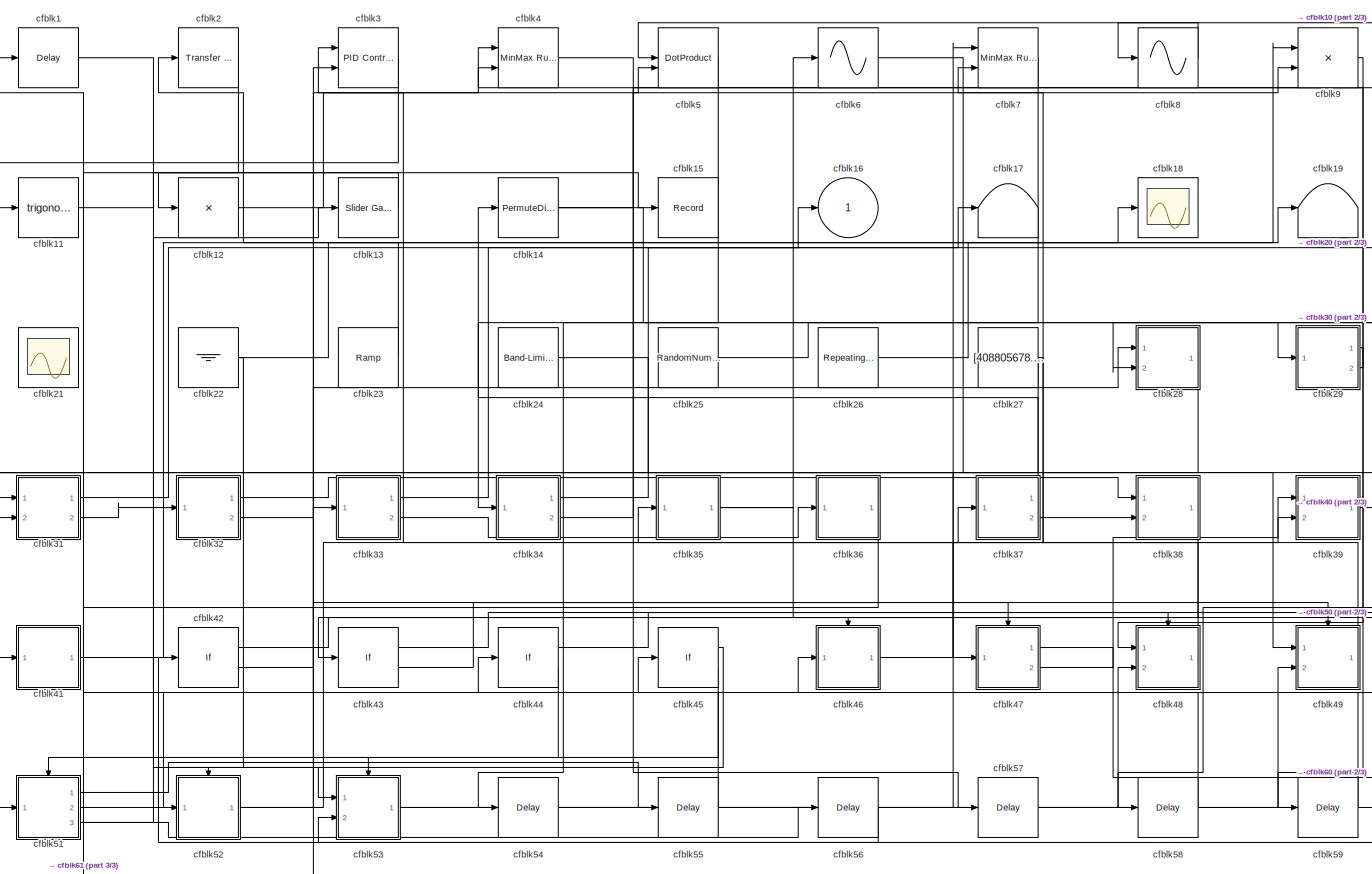
[diagram: root canvas - part 1/3, most of the canvas]
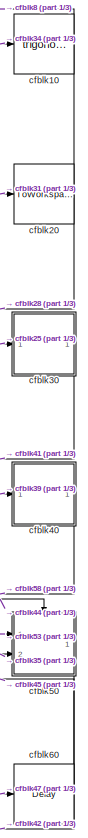
[diagram: root canvas - part 2/3, right side, full height]
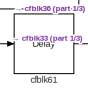
[diagram: root canvas - part 3/3, bottom left region]
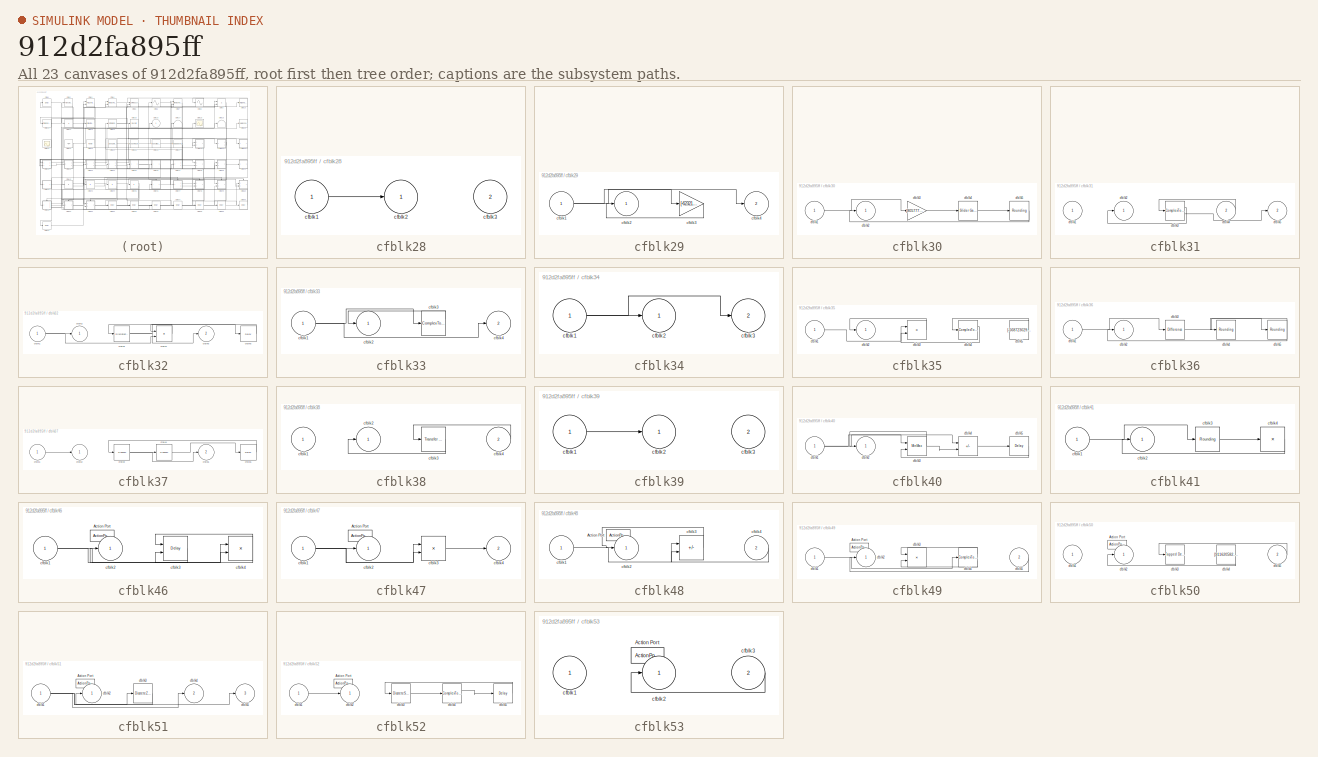
[diagram: thumbnail index - all 23 canvases of the model, root first then tree order]
MODEL slx_912d2fa895ff
KIND model
CONFIG AbsTol = auto
CONFIG EnableMultiTasking = off
CONFIG FixedStep = auto
CONFIG MaxStep = auto
CONFIG MinStep = auto
CONFIG RelTol = 1e-3
CONFIG SampleTimeConstraint = Unconstrained
CONFIG SolverName = VariableStepAuto
CONFIG StartTime = 0.0
CONFIG StopTime = 10.0
BLOCK [Delay] cfblk1
  InputPortMap = u0
  Ports = [1, 1]
  SampleTime = 1
BLOCK [Trigonometry] cfblk10
  Ports = [1, 1]
BLOCK [Trigonometry] cfblk11
  Ports = [1, 1]
BLOCK [Product] cfblk12
  Inputs = *
  Ports = [1, 1]
BLOCK [Reference] cfblk13  REF=simulink/Math
Operations/Slider
Gain
  Ports = [1, 1]
  SourceBlock = simulink/Math\nOperations/Slider\nGain
  SourceProductBaseCode = SL
  SourceType = Slider Gain
BLOCK [PermuteDimensions] cfblk14
BLOCK [Record] cfblk15
  FileSettingsInternal = {"entries":[{"content":{"excelSettings":{"content":{},"type":"Streamout.ExcelSettings"}},"type":"Streamout.FileSettingStorage","uuid":"ca993f84-a60c-403e-8350-93dc5c48e853"}],"packageUris":["http://schema.mathworks.com/mf0/streamout_blocks/R2020a"],"version":"1.0"}
  Ports = [1]
  SignalsInternal = {"entries":[{"content":{"signals":[{"content":{"blockPath":["sampleModel188/cfblk15"],"channel":[],"dimensions":[1,1],"domain":"sampleModel188/cfblk15","lineColor":"#139fff","plots":[1],"port":1,"sid":[""],"signalID":7064,"signalName":"cfblk11"},"type":"RecordBlkView.Signal","uuid":"ba3ac5e5-cf71-48a5-8aa6-1fcd734a01e5"}]},"type":"RecordBlkView.InputSignals","uuid":"2d8e7e94-0d17-40cb-8f9e-080a064...<+99ch>
  VisualizationBindings = {"sparklinesplugin":{"info":[{"bindingParametersList":[],"subplotID":1}]}}
BLOCK [Outport] cfblk16
BLOCK [Terminator] cfblk17
BLOCK [Scope] cfblk18
  Floating = off
  NumInputPorts = 1
  Ports = [1]
BLOCK [Terminator] cfblk19
BLOCK [Reference] cfblk2  REF=simulink/Discrete/Transfer Fcn
First Order
  Ports = [1, 1]
  SourceBlock = simulink/Discrete/Transfer Fcn\nFirst Order
  SourceProductBaseCode = SL
  SourceType = First Order Transfer Fcn
BLOCK [ToWorkspace] cfblk20
  FixptAsFi = on
  MaxDataPoints = inf
  Ports = [1]
  SampleTime = -1
  SaveFormat = Timeseries
  VariableName = ojbnuaf
BLOCK [Scope] cfblk21
  Floating = on
  NumInputPorts = 1
  Ports = []
BLOCK [Ground] cfblk22
BLOCK [Reference] cfblk23  REF=simulink/Sources/Ramp
  Ports = [0, 1]
  SourceBlock = simulink/Sources/Ramp
  SourceProductBaseCode = SL
  SourceType = Ramp
BLOCK [Reference] cfblk24  REF=simulink/Sources/Band-Limited
White Noise
  Ports = [0, 1]
  SourceBlock = simulink/Sources/Band-Limited\nWhite Noise
  SourceProductBaseCode = SL
  SourceType = Band-Limited White Noise.
BLOCK [RandomNumber] cfblk25
  Mean = [-27753.868403]
  SampleTime = 0.1
  Seed = [28560651.000000]
  Variance = [17619.578113]
BLOCK [Reference] cfblk26  REF=simulink/Sources/Repeating
Sequence
Stair
  Ports = [0, 1]
  SourceBlock = simulink/Sources/Repeating\nSequence\nStair
  SourceProductBaseCode = SL
  SourceType = Repeating Sequence Stair
BLOCK [Constant] cfblk27
  SampleTime = 1
  Value = [408805678.062761]
BLOCK [SubSystem] cfblk28
  Ports = [2, 1]
  RequestExecContextInheritance = off
BLOCK [Inport] cfblk28/cfblk1
BLOCK [Outport] cfblk28/cfblk2
BLOCK [Inport] cfblk28/cfblk3
  Port = 2
BLOCK [SubSystem] cfblk29
  Ports = [1, 2]
  RequestExecContextInheritance = off
BLOCK [Inport] cfblk29/cfblk1
BLOCK [Outport] cfblk29/cfblk2
BLOCK [Gain] cfblk29/cfblk3
  Gain = [-623215974.272057]
BLOCK [Outport] cfblk29/cfblk4
  Port = 2
BLOCK [Reference] cfblk3  REF=slpidlib/PID Controller (2DOF)
  Ports = [2, 1]
  SourceBlock = slpidlib/PID Controller (2DOF)
  SourceProductBaseCode = SL
  SourceType = PID 2dof
BLOCK [SubSystem] cfblk30
  Ports = [1, 1]
  RequestExecContextInheritance = off
BLOCK [Inport] cfblk30/cfblk1
BLOCK [Outport] cfblk30/cfblk2
BLOCK [Gain] cfblk30/cfblk3
  Gain = [805777025.743840]
BLOCK [Reference] cfblk30/cfblk4  REF=simulink/Math
Operations/Slider
Gain
  Ports = [1, 1]
  SourceBlock = simulink/Math\nOperations/Slider\nGain
  SourceProductBaseCode = SL
  SourceType = Slider Gain
BLOCK [Rounding] cfblk30/cfblk5
BLOCK [SubSystem] cfblk31
  Ports = [2, 2]
  RequestExecContextInheritance = off
BLOCK [Inport] cfblk31/cfblk1
BLOCK [Outport] cfblk31/cfblk2
BLOCK [ComplexToRealImag] cfblk31/cfblk3
  Ports = [1, 2]
BLOCK [Inport] cfblk31/cfblk4
  Port = 2
BLOCK [Outport] cfblk31/cfblk5
  Port = 2
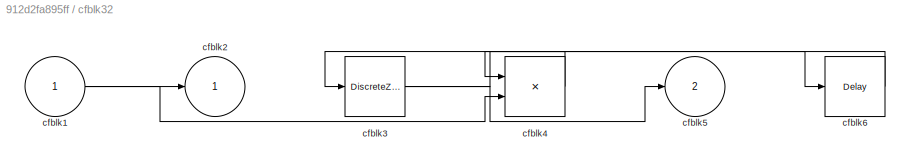
BLOCK [SubSystem] cfblk32
  Ports = [1, 2]
  RequestExecContextInheritance = off
BLOCK [Inport] cfblk32/cfblk1
BLOCK [Outport] cfblk32/cfblk2
BLOCK [DiscreteZeroPole] cfblk32/cfblk3
  Gain = 1
  Poles = [0 0.5]
BLOCK [Product] cfblk32/cfblk4
  Inputs = **
  Ports = [2, 1]
BLOCK [Outport] cfblk32/cfblk5
  Port = 2
BLOCK [Delay] cfblk32/cfblk6
  InputPortMap = u0
  Ports = [1, 1]
  SampleTime = 1
BLOCK [SubSystem] cfblk33
  Ports = [1, 2]
  RequestExecContextInheritance = off
BLOCK [Inport] cfblk33/cfblk1
BLOCK [Outport] cfblk33/cfblk2
BLOCK [ComplexToMagnitudeAngle] cfblk33/cfblk3
  Ports = [1, 2]
BLOCK [Outport] cfblk33/cfblk4
  Port = 2
BLOCK [SubSystem] cfblk34
  Ports = [1, 2]
  RequestExecContextInheritance = off
BLOCK [Inport] cfblk34/cfblk1
BLOCK [Outport] cfblk34/cfblk2
BLOCK [Outport] cfblk34/cfblk3
  Port = 2
BLOCK [SubSystem] cfblk35
  Ports = [1, 1]
  RequestExecContextInheritance = off
BLOCK [Inport] cfblk35/cfblk1
BLOCK [Outport] cfblk35/cfblk2
BLOCK [Product] cfblk35/cfblk3
  Inputs = **
  Ports = [2, 1]
BLOCK [ComplexToRealImag] cfblk35/cfblk4
  Ports = [1, 2]
BLOCK [Constant] cfblk35/cfblk5
  SampleTime = 1
  Value = [-568723029.088032]
BLOCK [SubSystem] cfblk36
  Ports = [1, 1]
  RequestExecContextInheritance = off
BLOCK [Inport] cfblk36/cfblk1
BLOCK [Outport] cfblk36/cfblk2
BLOCK [Reference] cfblk36/cfblk3  REF=simulink/Discrete/Difference
  Ports = [1, 1]
  SourceBlock = simulink/Discrete/Difference
  SourceProductBaseCode = SL
  SourceType = Difference
BLOCK [Rounding] cfblk36/cfblk4
BLOCK [Rounding] cfblk36/cfblk5
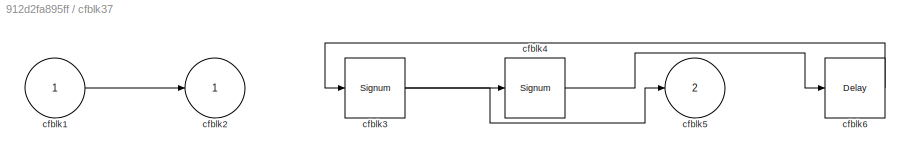
BLOCK [SubSystem] cfblk37
  Ports = [1, 2]
  RequestExecContextInheritance = off
BLOCK [Inport] cfblk37/cfblk1
BLOCK [Outport] cfblk37/cfblk2
BLOCK [Signum] cfblk37/cfblk3
BLOCK [Signum] cfblk37/cfblk4
BLOCK [Outport] cfblk37/cfblk5
  Port = 2
BLOCK [Delay] cfblk37/cfblk6
  InputPortMap = u0
  Ports = [1, 1]
  SampleTime = 1
BLOCK [SubSystem] cfblk38
  Ports = [2, 1]
  RequestExecContextInheritance = off
BLOCK [Inport] cfblk38/cfblk1
BLOCK [Outport] cfblk38/cfblk2
BLOCK [Reference] cfblk38/cfblk3  REF=simulink/Discrete/Transfer Fcn
Lead or Lag
  Ports = [1, 1]
  SourceBlock = simulink/Discrete/Transfer Fcn\nLead or Lag
  SourceProductBaseCode = SL
  SourceType = Lead or Lag Compensator
BLOCK [Inport] cfblk38/cfblk4
  Port = 2
BLOCK [SubSystem] cfblk39
  Ports = [2, 1]
  RequestExecContextInheritance = off
BLOCK [Inport] cfblk39/cfblk1
BLOCK [Outport] cfblk39/cfblk2
BLOCK [Inport] cfblk39/cfblk3
  Port = 2
BLOCK [Reference] cfblk4  REF=simulink/Math
Operations/MinMax
Running
Resettable
  Ports = [2, 1]
  SourceBlock = simulink/Math\nOperations/MinMax\nRunning\nResettable
  SourceProductBaseCode = SL
  SourceType = MinMax Running Resettable
BLOCK [SubSystem] cfblk40
  Ports = [1, 1]
  RequestExecContextInheritance = off
BLOCK [Inport] cfblk40/cfblk1
BLOCK [Outport] cfblk40/cfblk2
BLOCK [MinMax] cfblk40/cfblk3
  Function = max
  Inputs = 2
  Ports = [2, 1]
BLOCK [Sum] cfblk40/cfblk4
  IconShape = rectangular
  Inputs = --
  Ports = [2, 1]
BLOCK [Delay] cfblk40/cfblk5
  InputPortMap = u0
  Ports = [1, 1]
  SampleTime = 1
BLOCK [SubSystem] cfblk41
  Ports = [1, 1]
  RequestExecContextInheritance = off
BLOCK [Inport] cfblk41/cfblk1
BLOCK [Outport] cfblk41/cfblk2
BLOCK [Rounding] cfblk41/cfblk3
BLOCK [Product] cfblk41/cfblk4
  Inputs = *
  Ports = [1, 1]
BLOCK [If] cfblk42
  IfExpression = u1 >= 0
  Ports = [1, 2]
  SampleTime = 1
BLOCK [If] cfblk43
  IfExpression = u1 >= 0
  Ports = [1, 2]
  SampleTime = 1
BLOCK [If] cfblk44
  IfExpression = u1 >= 0
  Ports = [1, 2]
  SampleTime = 1
BLOCK [If] cfblk45
  IfExpression = u1 >= 0
  Ports = [1, 2]
  SampleTime = 1
BLOCK [SubSystem] cfblk46
  Ports = [1, 1, 0, 0, 0, 0, 0, 1]
  RequestExecContextInheritance = off
  TreatAsAtomicUnit = on
BLOCK [ActionPort] cfblk46/Action Port
  ActionPortLabel = if(u1 >= 0)
BLOCK [Inport] cfblk46/cfblk1
BLOCK [Outport] cfblk46/cfblk2
BLOCK [Delay] cfblk46/cfblk3
  DelayLengthSource = Input port
  InputPortMap = u0,p1
  Ports = [2, 1]
BLOCK [Product] cfblk46/cfblk4
  Inputs = **
  Ports = [2, 1]
BLOCK [SubSystem] cfblk47
  Ports = [1, 2, 0, 0, 0, 0, 0, 1]
  RequestExecContextInheritance = off
  TreatAsAtomicUnit = on
BLOCK [ActionPort] cfblk47/Action Port
  ActionPortLabel = else
BLOCK [Inport] cfblk47/cfblk1
BLOCK [Outport] cfblk47/cfblk2
BLOCK [Product] cfblk47/cfblk3
  Ports = [2, 1]
BLOCK [Outport] cfblk47/cfblk4
  Port = 2
BLOCK [SubSystem] cfblk48
  Ports = [2, 1, 0, 0, 0, 0, 0, 1]
  RequestExecContextInheritance = off
  TreatAsAtomicUnit = on
BLOCK [ActionPort] cfblk48/Action Port
  ActionPortLabel = if(u1 >= 0)
BLOCK [Inport] cfblk48/cfblk1
BLOCK [Outport] cfblk48/cfblk2
BLOCK [Sum] cfblk48/cfblk3
  IconShape = rectangular
  Inputs = --
  Ports = [2, 1]
BLOCK [Inport] cfblk48/cfblk4
  Port = 2
BLOCK [SubSystem] cfblk49
  Ports = [2, 1, 0, 0, 0, 0, 0, 1]
  RequestExecContextInheritance = off
  TreatAsAtomicUnit = on
BLOCK [ActionPort] cfblk49/Action Port
  ActionPortLabel = else
BLOCK [Inport] cfblk49/cfblk1
BLOCK [Outport] cfblk49/cfblk2
BLOCK [Product] cfblk49/cfblk3
  Inputs = **
  Ports = [2, 1]
BLOCK [ComplexToMagnitudeAngle] cfblk49/cfblk4
  Ports = [1, 2]
BLOCK [Inport] cfblk49/cfblk5
  Port = 2
BLOCK [DotProduct] cfblk5
  OutDataTypeStr = Inherit: Inherit via internal rule
BLOCK [SubSystem] cfblk50
  Ports = [2, 1, 0, 0, 0, 0, 0, 1]
  RequestExecContextInheritance = off
  TreatAsAtomicUnit = on
BLOCK [ActionPort] cfblk50/Action Port
  ActionPortLabel = if(u1 >= 0)
BLOCK [Inport] cfblk50/cfblk1
BLOCK [Outport] cfblk50/cfblk2
BLOCK [Reference] cfblk50/cfblk3  REF=simulink/Discrete/Tapped Delay
  Ports = [1, 1]
  SourceBlock = simulink/Discrete/Tapped Delay
  SourceProductBaseCode = SL
  SourceType = Tapped Delay Line
BLOCK [Constant] cfblk50/cfblk4
  SampleTime = 1
  Value = [911620582.754493]
BLOCK [Inport] cfblk50/cfblk5
  Port = 2
BLOCK [SubSystem] cfblk51
  Ports = [1, 3, 0, 0, 0, 0, 0, 1]
  RequestExecContextInheritance = off
  TreatAsAtomicUnit = on
BLOCK [ActionPort] cfblk51/Action Port
  ActionPortLabel = else
BLOCK [Inport] cfblk51/cfblk1
BLOCK [Outport] cfblk51/cfblk2
BLOCK [DiscreteZeroPole] cfblk51/cfblk3
  Gain = 1
  Poles = [0 0.5]
  SampleTime = -1
BLOCK [Outport] cfblk51/cfblk4
  Port = 2
BLOCK [Outport] cfblk51/cfblk5
  Port = 3
BLOCK [SubSystem] cfblk52
  Ports = [1, 1, 0, 0, 0, 0, 0, 1]
  RequestExecContextInheritance = off
  TreatAsAtomicUnit = on
BLOCK [ActionPort] cfblk52/Action Port
  ActionPortLabel = if(u1 >= 0)
BLOCK [Inport] cfblk52/cfblk1
BLOCK [Outport] cfblk52/cfblk2
BLOCK [DiscreteStateSpace] cfblk52/cfblk3
  SampleTime = -1
BLOCK [ComplexToRealImag] cfblk52/cfblk4
  Ports = [1, 2]
BLOCK [Delay] cfblk52/cfblk5
  InputPortMap = u0
  Ports = [1, 1]
BLOCK [SubSystem] cfblk53
  Ports = [2, 1, 0, 0, 0, 0, 0, 1]
  RequestExecContextInheritance = off
  TreatAsAtomicUnit = on
BLOCK [ActionPort] cfblk53/Action Port
  ActionPortLabel = else
BLOCK [Inport] cfblk53/cfblk1
BLOCK [Outport] cfblk53/cfblk2
BLOCK [Inport] cfblk53/cfblk3
  Port = 2
BLOCK [Delay] cfblk54
  InputPortMap = u0
  Ports = [1, 1]
  SampleTime = 1
BLOCK [Delay] cfblk55
  InputPortMap = u0
  Ports = [1, 1]
  SampleTime = 1
BLOCK [Delay] cfblk56
  InputPortMap = u0
  Ports = [1, 1]
  SampleTime = 1
BLOCK [Delay] cfblk57
  InputPortMap = u0
  Ports = [1, 1]
  SampleTime = 1
BLOCK [Delay] cfblk58
  InputPortMap = u0
  Ports = [1, 1]
  SampleTime = 1
BLOCK [Delay] cfblk59
  InputPortMap = u0
  Ports = [1, 1]
  SampleTime = 1
BLOCK [Sin] cfblk6
  Ports = [1, 1]
  SampleTime = 0
  TimeSource = Use external signal
BLOCK [Delay] cfblk60
  InputPortMap = u0
  Ports = [1, 1]
  SampleTime = 1
BLOCK [Delay] cfblk61
  InputPortMap = u0
  Ports = [1, 1]
  SampleTime = 1
BLOCK [Reference] cfblk7  REF=simulink/Math
Operations/MinMax
Running
Resettable
  Ports = [2, 1]
  SourceBlock = simulink/Math\nOperations/MinMax\nRunning\nResettable
  SourceProductBaseCode = SL
  SourceType = MinMax Running Resettable
BLOCK [Sin] cfblk8
  Ports = [1, 1]
  SampleTime = 0
  TimeSource = Use external signal
BLOCK [Product] cfblk9
  Ports = [2, 1]
NET cfblk10:1 -> cfblk28:2, cfblk8:1
LINE cfblk11:1 -> cfblk15:1
LINE cfblk12:1 -> cfblk4:1
LINE cfblk13:1 -> cfblk12:1
NET cfblk14:1 -> cfblk29:1, cfblk9:2
LINE cfblk1:1 -> cfblk53:1
NET cfblk22:1 -> cfblk52:1, cfblk9:1
LINE cfblk23:1 -> cfblk2:1
LINE cfblk24:1 -> cfblk47:1
LINE cfblk25:1 -> cfblk30:1
LINE cfblk26:1 -> cfblk18:1
NET cfblk27:1 -> cfblk31:2, cfblk35:1
LINE cfblk28/cfblk1:1 -> cfblk28/cfblk2:1
LINE cfblk28:1 -> cfblk51:1
NET cfblk29/cfblk1:1 -> cfblk29/cfblk3:1, cfblk29/cfblk4:1
LINE cfblk29/cfblk3:1 -> cfblk29/cfblk2:1
LINE cfblk29:1 -> cfblk48:1
LINE cfblk29:2 -> cfblk4:2
LINE cfblk2:1 -> cfblk31:1
LINE cfblk30/cfblk1:1 -> cfblk30/cfblk3:1
LINE cfblk30/cfblk3:1 -> cfblk30/cfblk4:1
LINE cfblk30/cfblk4:1 -> cfblk30/cfblk5:1
LINE cfblk30/cfblk5:1 -> cfblk30/cfblk2:1
LINE cfblk30:1 -> cfblk41:1
LINE cfblk31/cfblk3:1 -> cfblk31/cfblk2:1
LINE cfblk31/cfblk3:2 -> cfblk31/cfblk5:1
LINE cfblk31/cfblk4:1 -> cfblk31/cfblk3:1
LINE cfblk31:1 -> cfblk20:1
LINE cfblk31:2 -> cfblk32:1
NET cfblk32/cfblk1:1 -> cfblk32/cfblk2:1, cfblk32/cfblk4:2
NET cfblk32/cfblk3:1 -> cfblk32/cfblk5:1, cfblk32/cfblk6:1
LINE cfblk32/cfblk4:1 -> cfblk32/cfblk3:1
LINE cfblk32/cfblk6:1 -> cfblk32/cfblk4:1
LINE cfblk32:1 -> cfblk38:1
LINE cfblk32:2 -> cfblk28:1
NET cfblk33/cfblk1:1 -> cfblk33/cfblk3:1, cfblk33/cfblk4:1
LINE cfblk33/cfblk3:1 -> cfblk33/cfblk2:1
LINE cfblk33:1 -> cfblk16:1
LINE cfblk33:2 -> cfblk36:1
NET cfblk34/cfblk1:1 -> cfblk34/cfblk2:1, cfblk34/cfblk3:1
LINE cfblk34:1 -> cfblk17:1
LINE cfblk34:2 -> cfblk10:1
LINE cfblk35/cfblk1:1 -> cfblk35/cfblk3:1
LINE cfblk35/cfblk3:1 -> cfblk35/cfblk2:1
LINE cfblk35/cfblk4:1 -> cfblk35/cfblk3:2
LINE cfblk35/cfblk5:1 -> cfblk35/cfblk4:1
NET cfblk35:1 -> cfblk50:2, cfblk6:1
LINE cfblk36/cfblk1:1 -> cfblk36/cfblk3:1
LINE cfblk36/cfblk3:1 -> cfblk36/cfblk5:1
NET cfblk36/cfblk5:1 -> cfblk36/cfblk2:1, cfblk36/cfblk4:1
LINE cfblk36:1 -> cfblk61:1
LINE cfblk37/cfblk1:1 -> cfblk37/cfblk2:1
NET cfblk37/cfblk3:1 -> cfblk37/cfblk4:1, cfblk37/cfblk5:1
LINE cfblk37/cfblk4:1 -> cfblk37/cfblk6:1
LINE cfblk37/cfblk6:1 -> cfblk37/cfblk3:1
LINE cfblk37:1 -> cfblk14:1
LINE cfblk37:2 -> cfblk38:2
LINE cfblk38/cfblk3:1 -> cfblk38/cfblk2:1
LINE cfblk38/cfblk4:1 -> cfblk38/cfblk3:1
LINE cfblk38:1 -> cfblk43:1
LINE cfblk39/cfblk1:1 -> cfblk39/cfblk2:1
LINE cfblk39:1 -> cfblk40:1
LINE cfblk3:1 -> cfblk11:1
NET cfblk40/cfblk1:1 -> cfblk40/cfblk3:1, cfblk40/cfblk4:1
NET cfblk40/cfblk3:1 -> cfblk40/cfblk2:1, cfblk40/cfblk4:2
LINE cfblk40/cfblk4:1 -> cfblk40/cfblk5:1
LINE cfblk40/cfblk5:1 -> cfblk40/cfblk3:2
LINE cfblk40:1 -> cfblk58:1
LINE cfblk41/cfblk1:1 -> cfblk41/cfblk3:1
LINE cfblk41/cfblk3:1 -> cfblk41/cfblk4:1
LINE cfblk41/cfblk4:1 -> cfblk41/cfblk2:1
LINE cfblk41:1 -> cfblk19:1
LINE cfblk42:1 -> cfblk46:ifaction
LINE cfblk42:2 -> cfblk47:ifaction
LINE cfblk43:1 -> cfblk48:ifaction
LINE cfblk43:2 -> cfblk49:ifaction
LINE cfblk44:1 -> cfblk50:ifaction
LINE cfblk44:2 -> cfblk51:ifaction
LINE cfblk45:1 -> cfblk52:ifaction
LINE cfblk45:2 -> cfblk53:ifaction
NET cfblk46/cfblk1:1 -> cfblk46/cfblk4:1, cfblk46/cfblk4:2
LINE cfblk46/cfblk3:1 -> cfblk46/cfblk2:1
NET cfblk46/cfblk4:1 -> cfblk46/cfblk3:1, cfblk46/cfblk3:2
LINE cfblk46:1 -> cfblk39:2
NET cfblk47/cfblk1:1 -> cfblk47/cfblk2:1, cfblk47/cfblk3:1, cfblk47/cfblk3:2
LINE cfblk47/cfblk3:1 -> cfblk47/cfblk4:1
LINE cfblk47:1 -> cfblk60:1
LINE cfblk47:2 -> cfblk39:1
LINE cfblk48/cfblk1:1 -> cfblk48/cfblk3:1
LINE cfblk48/cfblk3:1 -> cfblk48/cfblk2:1
LINE cfblk48/cfblk4:1 -> cfblk48/cfblk3:2
LINE cfblk48:1 -> cfblk3:1
LINE cfblk49/cfblk1:1 -> cfblk49/cfblk4:1
LINE cfblk49/cfblk4:1 -> cfblk49/cfblk3:1
LINE cfblk49/cfblk4:2 -> cfblk49/cfblk3:2
LINE cfblk49/cfblk5:1 -> cfblk49/cfblk2:1
LINE cfblk49:1 -> cfblk7:2
LINE cfblk4:1 -> cfblk57:1
LINE cfblk50/cfblk4:1 -> cfblk50/cfblk2:1
LINE cfblk50/cfblk5:1 -> cfblk50/cfblk3:1
LINE cfblk50:1 -> cfblk42:1
NET cfblk51/cfblk1:1 -> cfblk51/cfblk3:1, cfblk51/cfblk4:1, cfblk51/cfblk5:1
LINE cfblk51/cfblk3:1 -> cfblk51/cfblk2:1
LINE cfblk51:1 -> cfblk55:1
LINE cfblk51:2 -> cfblk3:2
NET cfblk51:3 -> cfblk13:1, cfblk56:1
LINE cfblk52/cfblk1:1 -> cfblk52/cfblk2:1
LINE cfblk52/cfblk3:1 -> cfblk52/cfblk4:1
LINE cfblk52/cfblk4:1 -> cfblk52/cfblk5:1
LINE cfblk52/cfblk5:1 -> cfblk52/cfblk3:1
NET cfblk52:1 -> cfblk37:1, cfblk5:2
LINE cfblk53/cfblk3:1 -> cfblk53/cfblk2:1
NET cfblk53:1 -> cfblk49:2, cfblk50:1
LINE cfblk54:1 -> cfblk7:1
LINE cfblk55:1 -> cfblk1:1
LINE cfblk56:1 -> cfblk53:2
LINE cfblk57:1 -> cfblk48:2
LINE cfblk58:1 -> cfblk46:1
LINE cfblk59:1 -> cfblk44:1
LINE cfblk5:1 -> cfblk54:1
LINE cfblk60:1 -> cfblk45:1
LINE cfblk61:1 -> cfblk33:1
LINE cfblk6:1 -> cfblk49:1
LINE cfblk7:1 -> cfblk34:1
LINE cfblk8:1 -> cfblk5:1
LINE cfblk9:1 -> cfblk59:1
note: NET lines group one-source signal fan-out (src -> all destinations, sorted); 1:1 wires keep LINE
